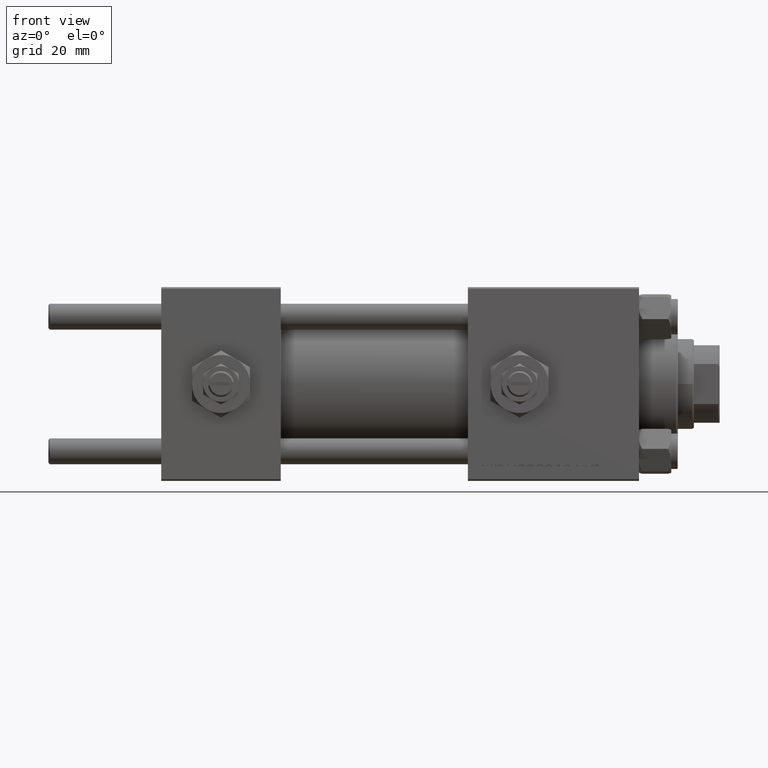
[diagram: clean part render]
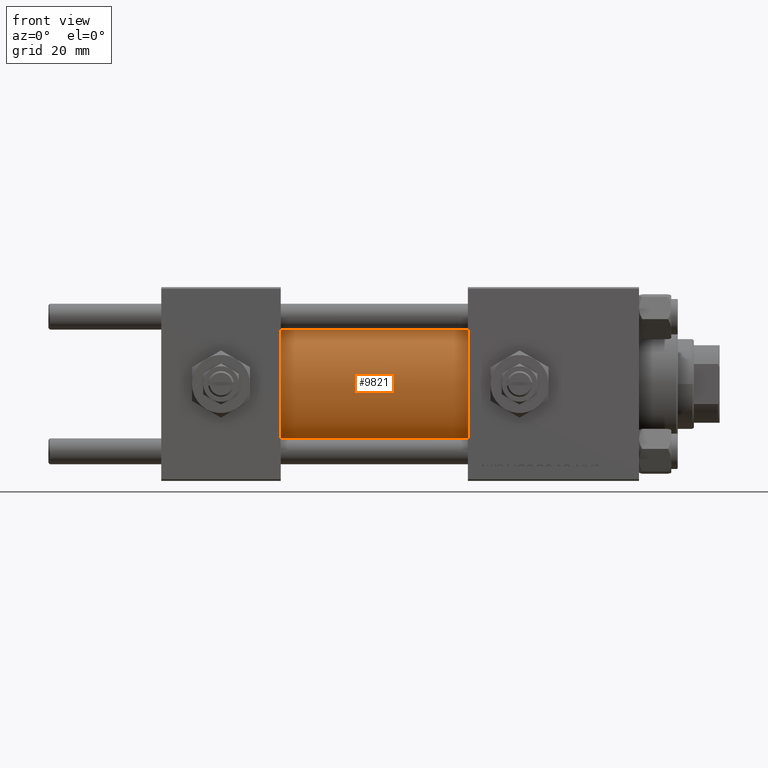
[diagram: same view with one face highlighted and labeled with its STEP entity id]
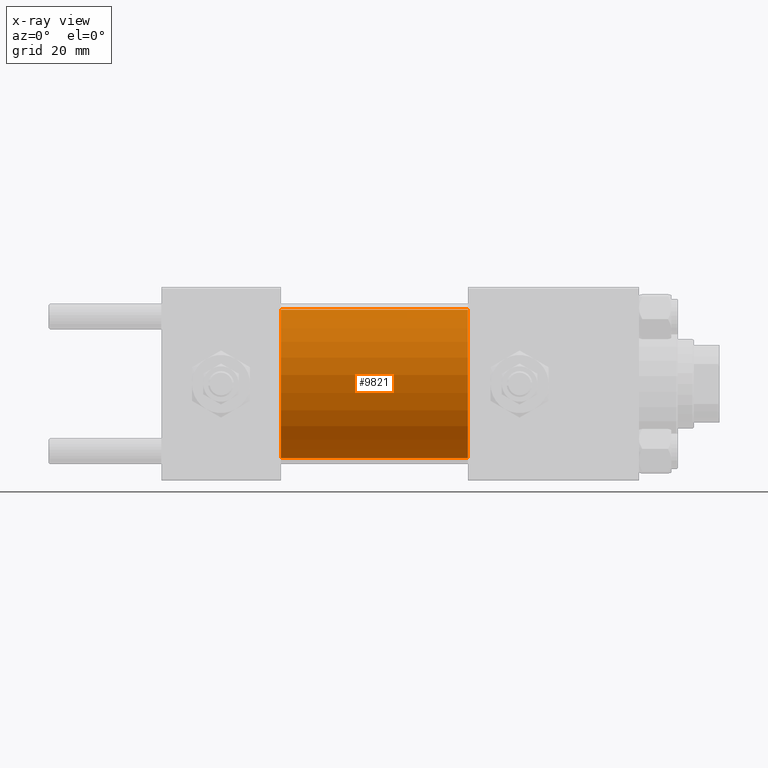
[diagram: x-ray of the same camera — body ghosted, the highlighted face saturated]
A machine part, front view. The second image highlights one B-rep face of the part: STEP entity #9821.
The next image is the same camera in x-ray: the body ghosted, the highlighted face saturated — about 0% of this face is hidden behind the body in this view.
In plain terms, the highlighted cylindrical surface (partial cylindrical patch) has radius 23 mm, axis along (-1, -0, -0).
Its self-contained STEP definition (entity closure, byte-faithful):
#1218 = FACE_OUTER_BOUND ( 'NONE', #25520, .T. ) ;
#4558 = AXIS2_PLACEMENT_3D ( 'NONE', #24675, #5153, #40761 ) ;
#4586 = VERTEX_POINT ( 'NONE', #37458 ) ;
#4937 = CYLINDRICAL_SURFACE ( 'NONE', #34406, 23.00000000000000000 ) ;
#5153 = DIRECTION ( 'NONE',  ( 1.000000000000000000, 0.000000000000000000, 0.000000000000000000 ) ) ;
#6004 = ORIENTED_EDGE ( 'NONE', *, *, #19635, .T. ) ;
#7874 = LINE ( 'NONE', #12596, #48642 ) ;
#9821 = ADVANCED_FACE ( 'NONE', ( #1218 ), #4937, .T. ) ;
#11701 = DIRECTION ( 'NONE',  ( 0.000000000000000000, 0.000000000000000000, 1.000000000000000000 ) ) ;
#11829 = VERTEX_POINT ( 'NONE', #46061 ) ;
#12596 = CARTESIAN_POINT ( 'NONE',  ( 95.00000000000000000, 0.000000000000000000, 23.00000000000000000 ) ) ;
#13511 = CARTESIAN_POINT ( 'NONE',  ( 37.00000000000000000, 2.816687638038911957E-15, -23.00000000000000000 ) ) ;
#14863 = CARTESIAN_POINT ( 'NONE',  ( 37.00000000000000000, 0.000000000000000000, 0.000000000000000000 ) ) ;
#15956 = EDGE_CURVE ( 'NONE', #4586, #19144, #37179, .T. ) ;
#16814 = DIRECTION ( 'NONE',  ( 0.000000000000000000, 0.000000000000000000, 1.000000000000000000 ) ) ;
#18917 = AXIS2_PLACEMENT_3D ( 'NONE', #14863, #31756, #11701 ) ;
#19144 = VERTEX_POINT ( 'NONE', #13511 ) ;
#19635 = EDGE_CURVE ( 'NONE', #22774, #19144, #34943, .T. ) ;
#20762 = CARTESIAN_POINT ( 'NONE',  ( 95.00000000000000000, 0.000000000000000000, 0.000000000000000000 ) ) ;
#21941 = EDGE_CURVE ( 'NONE', #11829, #4586, #33252, .T. ) ;
#22038 = ORIENTED_EDGE ( 'NONE', *, *, #15956, .F. ) ;
#22774 = VERTEX_POINT ( 'NONE', #37596 ) ;
#24675 = CARTESIAN_POINT ( 'NONE',  ( 95.00000000000000000, 0.000000000000000000, 0.000000000000000000 ) ) ;
#25520 = EDGE_LOOP ( 'NONE', ( #22038, #26850, #35893, #6004 ) ) ;
#26850 = ORIENTED_EDGE ( 'NONE', *, *, #21941, .F. ) ;
#28693 = DIRECTION ( 'NONE',  ( -1.000000000000000000, -0.000000000000000000, -0.000000000000000000 ) ) ;
#28942 = DIRECTION ( 'NONE',  ( -1.000000000000000000, -0.000000000000000000, -0.000000000000000000 ) ) ;
#31756 = DIRECTION ( 'NONE',  ( 1.000000000000000000, -0.000000000000000000, 0.000000000000000000 ) ) ;
#33217 = CARTESIAN_POINT ( 'NONE',  ( 95.00000000000000000, 2.816687638038911957E-15, -23.00000000000000000 ) ) ;
#33252 = CIRCLE ( 'NONE', #4558, 23.00000000000000000 ) ;
#34406 = AXIS2_PLACEMENT_3D ( 'NONE', #20762, #28942, #16814 ) ;
#34943 = CIRCLE ( 'NONE', #18917, 23.00000000000000000 ) ;
#35893 = ORIENTED_EDGE ( 'NONE', *, *, #50276, .T. ) ;
#37179 = LINE ( 'NONE', #33217, #49956 ) ;
#37458 = CARTESIAN_POINT ( 'NONE',  ( 95.00000000000000000, 2.816687638038911957E-15, -23.00000000000000000 ) ) ;
#37596 = CARTESIAN_POINT ( 'NONE',  ( 37.00000000000000000, 0.000000000000000000, 23.00000000000000000 ) ) ;
#40761 = DIRECTION ( 'NONE',  ( 0.000000000000000000, 0.000000000000000000, -1.000000000000000000 ) ) ;
#46061 = CARTESIAN_POINT ( 'NONE',  ( 95.00000000000000000, 0.000000000000000000, 23.00000000000000000 ) ) ;
#48642 = VECTOR ( 'NONE', #28693, 1000.000000000000000 ) ;
#49264 = DIRECTION ( 'NONE',  ( -1.000000000000000000, -0.000000000000000000, -0.000000000000000000 ) ) ;
#49956 = VECTOR ( 'NONE', #49264, 1000.000000000000000 ) ;
#50276 = EDGE_CURVE ( 'NONE', #11829, #22774, #7874, .T. ) ;